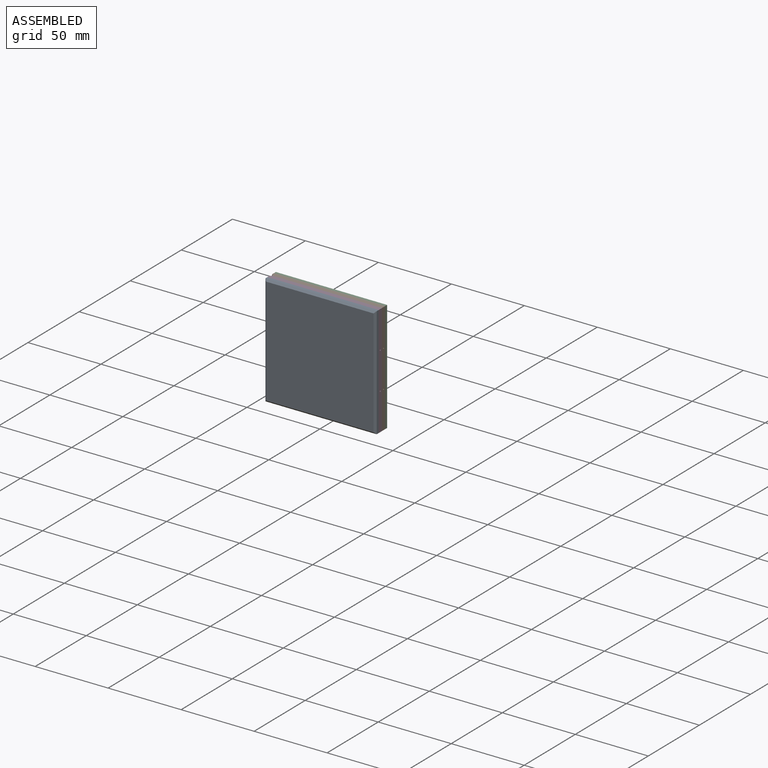
[diagram: assembled view]
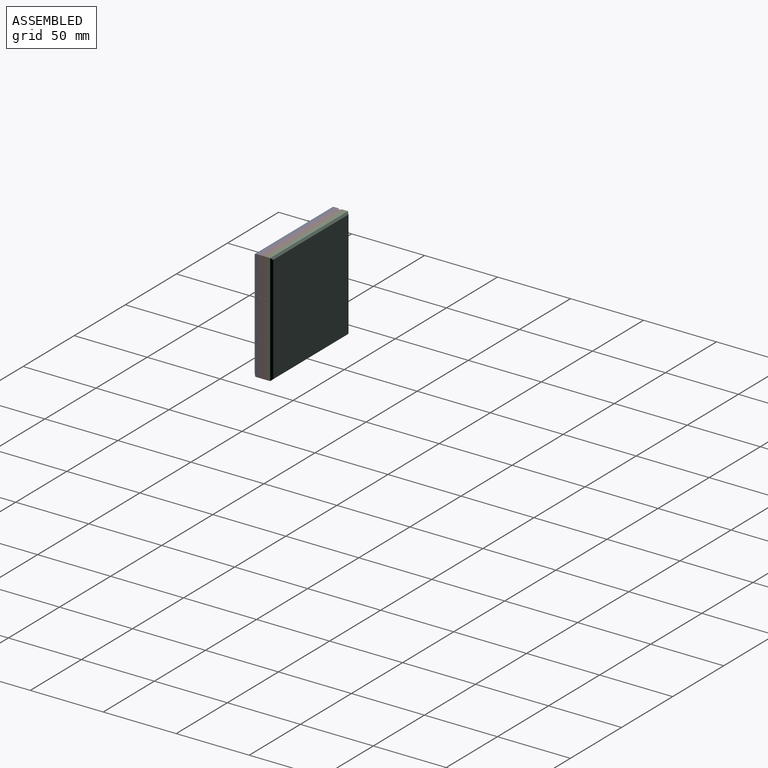
[diagram: assembled view, second angle]
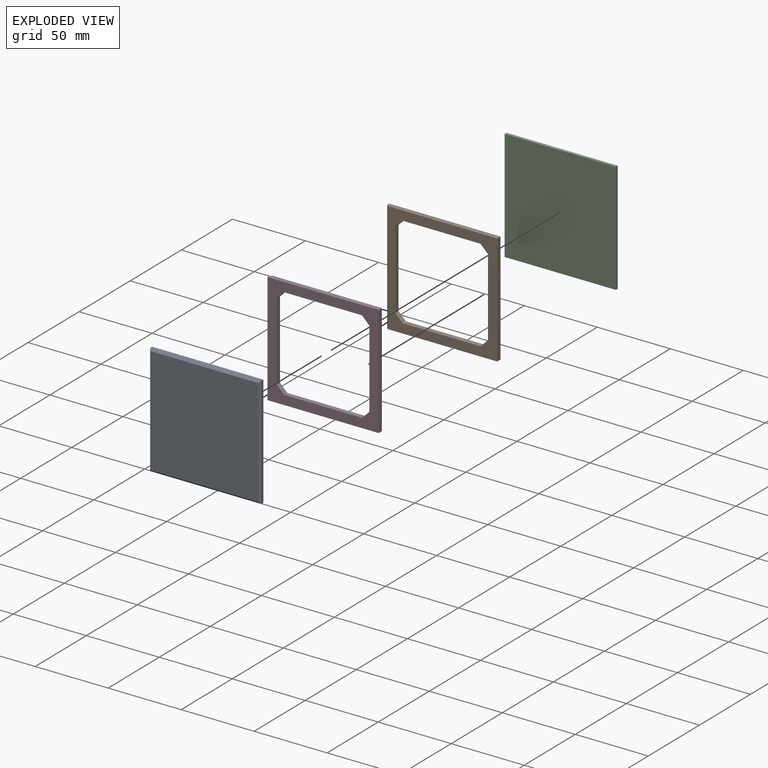
[diagram: exploded view]
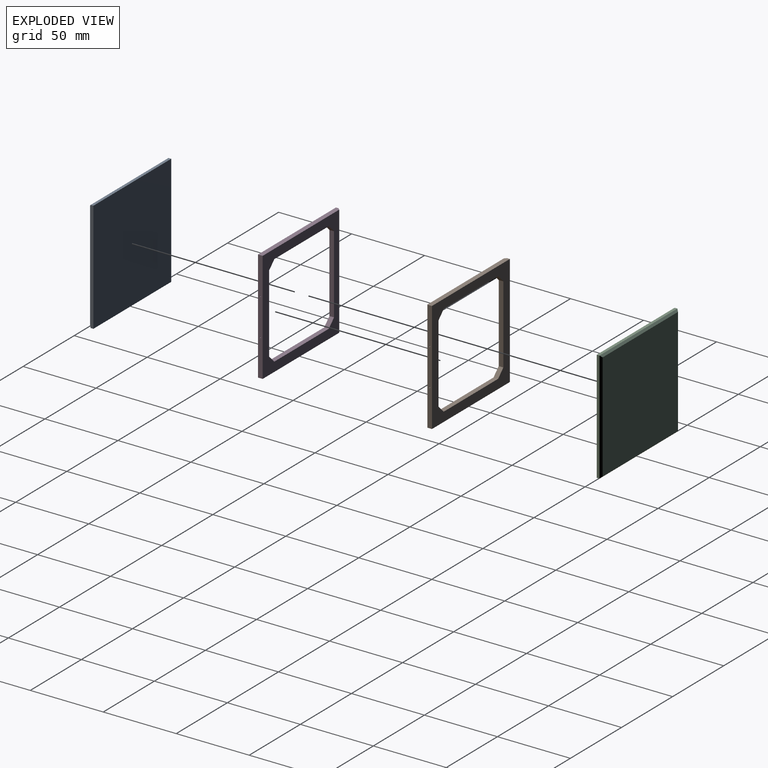
[diagram: exploded view, second angle]
ASSEMBLY  parts=4 mates=3
PART A: 10 faces, bbox 76.2x76.2x3.2 mm
  f0: plane 76.2x1.91mm, normal (0,1,0), area 145.2mm2, adj f1,f3,f4,f7
  f1: plane 76.2x1.91mm, normal (-1,0,0), area 145.2mm2, adj f0,f2,f4,f8
  f2: plane 76.2x1.91mm, normal (0,-1,0), area 145.2mm2, adj f1,f3,f4,f9
  f3: plane 76.2x1.91mm, normal (1,0,0), area 145.2mm2, adj f0,f2,f4,f6
  f4: plane 76.2x76.2mm, normal (0,0,1), area 5806.4mm2, adj f0,f1,f2,f3
  f5: plane 73.66x73.66mm, normal (0,0,-1), area 5425.8mm2, adj f6,f7,f8,f9
  f6: plane 76.2x1.27mm, normal (0.71,0,-0.71), area 134.6mm2, adj f3,f5,f7,f9
  f7: plane 76.2x1.27mm, normal (0,0.71,-0.71), area 134.6mm2, adj f0,f5,f6,f8
  f8: plane 76.2x1.27mm, normal (-0.71,0,-0.71), area 134.6mm2, adj f1,f5,f7,f9
  f9: plane 76.2x1.27mm, normal (0,-0.71,-0.71), area 134.6mm2, adj f2,f5,f6,f8
PART B: 17 faces, bbox 76.2x76.2x3.2 mm
  f0: plane 53.34x3.18mm, normal (1,0,0), area 169.4mm2, adj f8,f9,f10,f12
  f1: plane 53.34x3.18mm, normal (0,-1,0), area 169.4mm2, adj f8,f9,f10,f11
  f2: plane 53.34x3.18mm, normal (-1,0,0), area 169.4mm2, adj f8,f9,f11,f13
  f3: plane 76.2x1.91mm, normal (0,1,0), area 145.2mm2, adj f4,f6,f9,f14
  f4: plane 76.2x3.18mm, normal (-1,0,0), area 241.1mm2, adj f3,f5,f8,f9,f14
  f5: plane 76.2x3.18mm, normal (0,-1,0), area 240.9mm2, adj f4,f6,f8,f9,f15,f16
  f6: plane 76.2x3.18mm, normal (1,0,0), area 241.1mm2, adj f3,f5,f8,f9,f14
  f7: plane 53.34x3.18mm, normal (0,1,0), area 168.4mm2, adj f8,f9,f12,f13,f15,f16
  f8: plane 76.2x74.93mm, normal (0,0,1), area 1729mm2, adj f0,f1,f2,f4,f5,f6,f7,f10
  f9: plane 76.2x76.2mm, normal (0,0,-1), area 1825.8mm2, adj f0,f1,f2,f3,f4,f5,f6,f7
  f10: plane 5.08x5.08mm, normal (0.71,-0.71,0), area 22.8mm2, adj f0,f1,f8,f9
  f11: plane 5.08x5.08mm, normal (-0.71,-0.71,0), area 22.8mm2, adj f1,f2,f8,f9
  f12: plane 5.08x5.08mm, normal (0.71,0.71,0), area 22.8mm2, adj f0,f7,f8,f9
  f13: plane 5.08x5.08mm, normal (-0.71,0.71,0), area 22.8mm2, adj f2,f7,f8,f9
  f14: plane 76.2x1.27mm, normal (0,0.71,0.71), area 136.9mm2, adj f3,f4,f6,f8
  f15: cylinder r=0.4mm len=6.35mm, axis (0,-1,0), area 15.9mm2, adj f5,f7
  f16: cylinder r=0.4mm len=6.35mm, axis (0,-1,0), area 15.9mm2, adj f5,f7
PART C: same geometry as A
PART D: same geometry as B
PLACE A rot(axis=(-0.58,0.58,0.58),120deg) t=(-5.82,65.42,-88.32)mm fixed
PLACE B rot(axis=(0.58,-0.58,0.58),120deg) t=(-5.82,74.95,-88.32)mm
PLACE C rot(axis=(0.58,-0.58,0.58),120deg) t=(-5.82,78.12,-88.32)mm
PLACE D rot(axis=(-0.58,0.58,0.58),120deg) t=(-5.82,68.6,-88.32)mm
MATE fastened B.f9 <-> C.f4  axis (0,1,0) through (-43.92,74.95,-126.42)mm
MATE fastened A.f4 <-> D.f9  axis (0,1,0) through (-5.82,68.6,-88.32)mm
MATE cylindrical B.f6 <-> D.f4  axis (0,0,1) through (32.28,71.77,-50.22)mm
